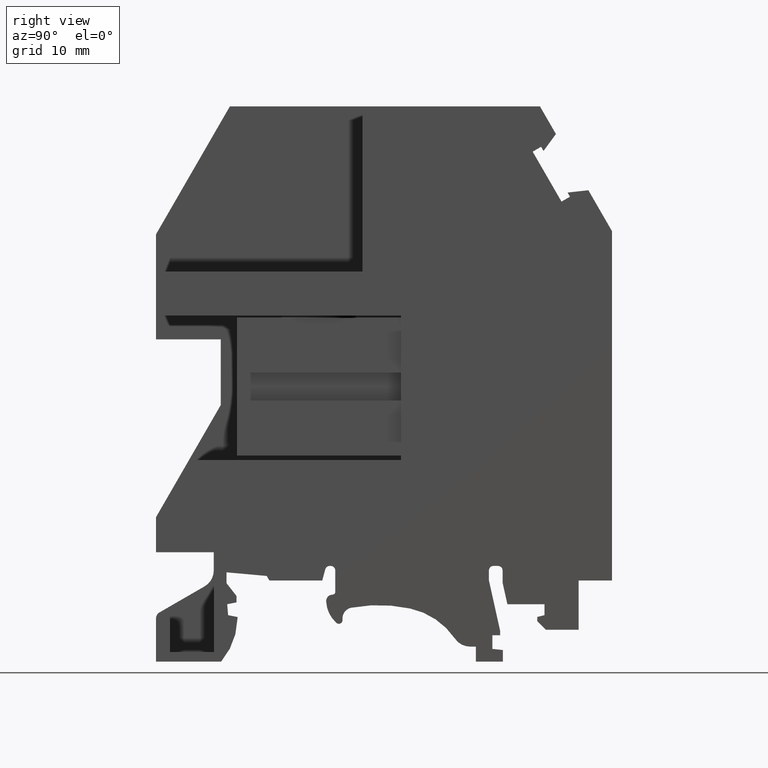
[diagram: clean part render]
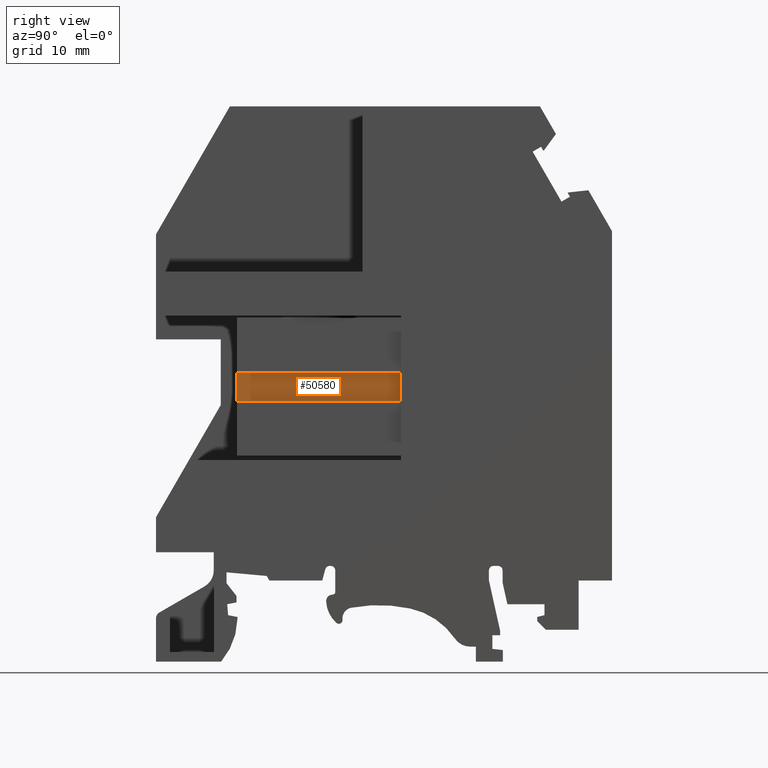
[diagram: same view with one face highlighted and labeled with its STEP entity id]
A machine part, right view. The second image highlights one B-rep face of the part: STEP entity #50580.
In plain terms, the highlighted planar face has unit normal (1, -0, 0).
Its self-contained STEP definition (entity closure, byte-faithful):
#31210=CARTESIAN_POINT('',(16.2499999999998,-33.5050921699994,
-5.01499999999998));
#31220=VERTEX_POINT('',#31210);
#33290=CARTESIAN_POINT('',(-1.75000000000017,-33.5050921699994,
-5.01499999999998));
#33300=VERTEX_POINT('',#33290);
#33330=CARTESIAN_POINT('',(-1.75000000000017,0.,-5.01499999999971));
#33340=DIRECTION('',(1.83697019872104E-16,1.,8.02225669406566E-15));
#33350=VECTOR('',#33340,1.);
#33360=LINE('',#33330,#33350);
#33370=CARTESIAN_POINT('',(-1.75000000000017,-30.4050921699994,
-5.01499999999995));
#33380=VERTEX_POINT('',#33370);
#33390=EDGE_CURVE('',#33300,#33380,#33360,.T.);
#49080=CARTESIAN_POINT('',(16.2499999999998,-30.4050921699994,
-5.01499999999995));
#49090=VERTEX_POINT('',#49080);
#49690=CARTESIAN_POINT('',(16.2499999999998,0.,-5.01499999999971));
#49700=DIRECTION('',(-1.22464679914736E-16,-1.,-8.02225669406566E-15));
#49710=VECTOR('',#49700,1.);
#49720=LINE('',#49690,#49710);
#49730=EDGE_CURVE('',#49090,#31220,#49720,.T.);
#50010=CARTESIAN_POINT('',(0.,-30.4050921699994,-5.01499999999995));
#50020=DIRECTION('',(-1.,1.22464679914735E-16,6.12323399573677E-17));
#50030=VECTOR('',#50020,1.);
#50040=LINE('',#50010,#50030);
#50050=EDGE_CURVE('',#49090,#33380,#50040,.T.);
#50420=CARTESIAN_POINT('',(16.2499999999998,-33.5050921699994,
-5.01499999999998));
#50430=DIRECTION('',(-6.12323399573667E-17,8.02225669406566E-15,-1.));
#50440=DIRECTION('',(-1.22464679914736E-16,-1.,-8.02225669406566E-15));
#50450=AXIS2_PLACEMENT_3D('',#50420,#50430,#50440);
#50460=PLANE('',#50450);
#50470=ORIENTED_EDGE('',*,*,#50050,.F.);
#50480=ORIENTED_EDGE('',*,*,#33390,.T.);
#50490=CARTESIAN_POINT('',(0.,-33.5050921699994,-5.01499999999998));
#50500=DIRECTION('',(-1.,1.22464679914735E-16,6.12323399573676E-17));
#50510=VECTOR('',#50500,1.);
#50520=LINE('',#50490,#50510);
#50530=EDGE_CURVE('',#31220,#33300,#50520,.T.);
#50540=ORIENTED_EDGE('',*,*,#50530,.T.);
#50550=ORIENTED_EDGE('',*,*,#49730,.T.);
#50560=EDGE_LOOP('',(#50550,#50540,#50480,#50470));
#50570=FACE_OUTER_BOUND('',#50560,.T.);
#50580=ADVANCED_FACE('',(#50570),#50460,.T.);